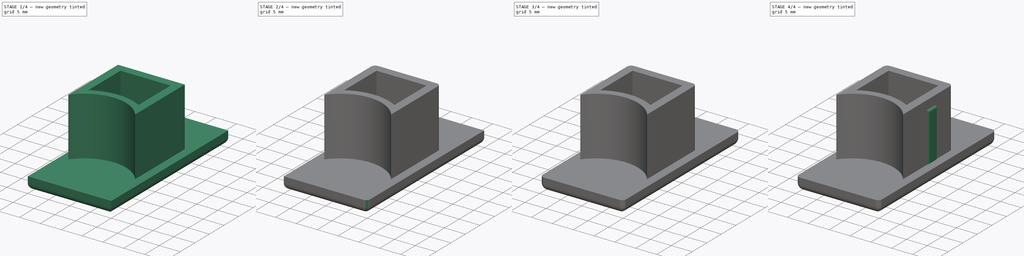
[diagram: build sequence overview — one tinted view per stage of 4, left to right]
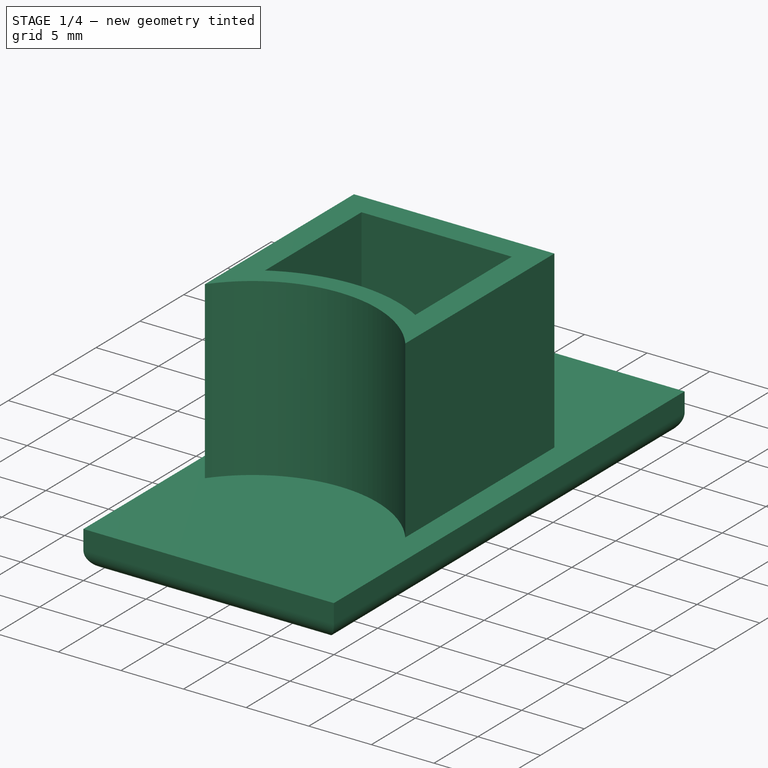
[diagram: stage 1 of 4 — iso view after this stage's code; geometry added in this stage tinted green]
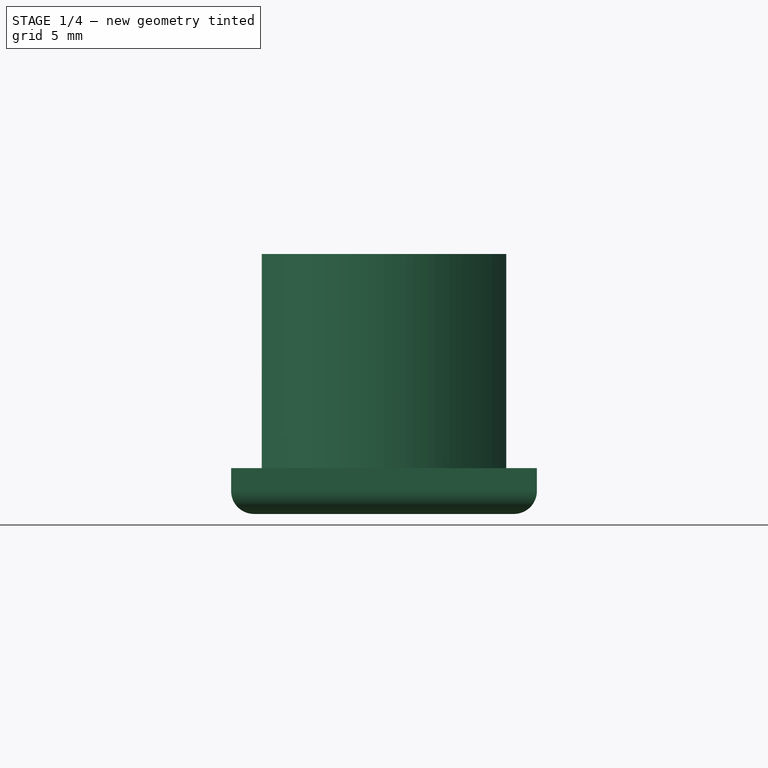
[diagram: stage 1 of 4 — front view after this stage's code; geometry added in this stage tinted green]
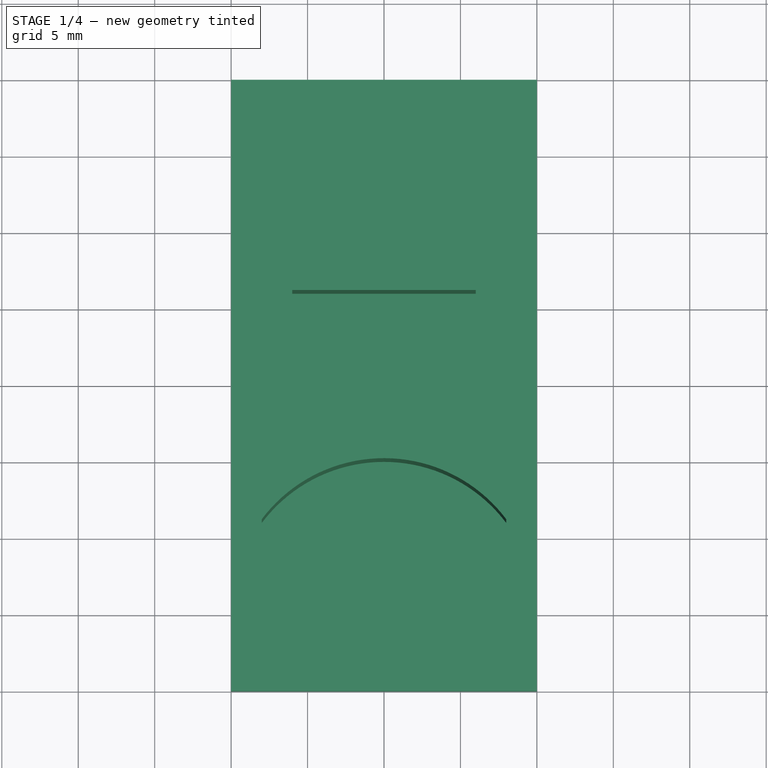
[diagram: stage 1 of 4 — top view after this stage's code; geometry added in this stage tinted green]
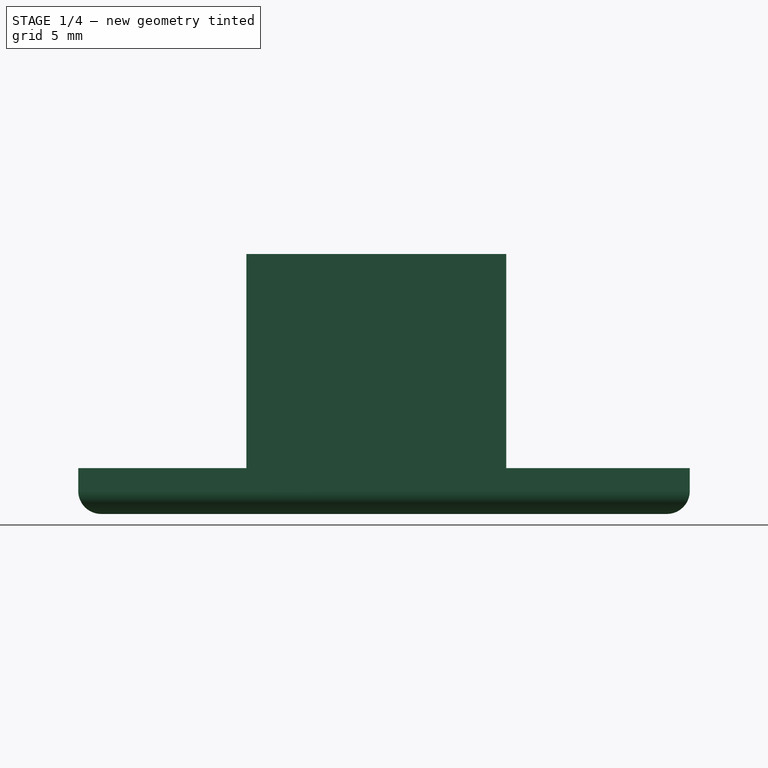
[diagram: stage 1 of 4 — right view after this stage's code; geometry added in this stage tinted green]
FCSTD DOCUMENT  (FreeCAD 0.19R24276 (Git))
Label: PiedChaise
License: Creative Commons Attribution-NonCommercial
LicenseURL: http://creativecommons.org/licenses/by-nc/4.0/
objects: Sketcher::SketchObject×8, PartDesign::Fillet×8, PartDesign::Pad×5, PartDesign::Pocket×1, PartDesign::Body×1
note: 37 computed .brp shape members not serialized (recipe doc carries the construction recipe); baked Part::Feature solids carry a one-line shape summary decoded from their .brp

FEATURE [Sketcher::SketchObject] Sketch
  FullyConstrained = true
  MapMode = 5
  Support = -> [XY_Plane]
  sketch-geometry (4):
    g0: LineSegment StartX=0 StartY=0 StartZ=0 EndX=20 EndY=0 EndZ=0
    g1: LineSegment StartX=20 StartY=0 StartZ=0 EndX=20 EndY=40 EndZ=0
    g2: LineSegment StartX=20 StartY=40 StartZ=0 EndX=0 EndY=40 EndZ=0
    g3: LineSegment StartX=0 StartY=40 StartZ=0 EndX=0 EndY=0 EndZ=0
  constraints (11):
    c: Coincident(g0,g1)
    c: Coincident(g1,g2)
    c: Coincident(g2,g3)
    c: Coincident(g3,g0)
    c: Horizontal(g0)
    c: Horizontal(g2)
    c: Vertical(g1)
    c: Vertical(g3)
    c: Coincident(g0,g-1)
    c: Distance(g1) = 40
    c: Distance(g2) = 20
FEATURE [PartDesign::Pad] Pad
  Direction = (1,1,1)
  Length = 3
  Length2 = 100
  Profile = -> Sketch
  Type = 0
FEATURE [Sketcher::SketchObject] Sketch001
  ExternalGeometry = -> [Pad]
  FullyConstrained = true
  MapMode = 5
  Placement = pos=(0,0,3) rot=(0,0,1;0rad)
  Support = -> [Pad]
  sketch-geometry (6):
    g0: LineSegment StartX=2 StartY=28 StartZ=0 EndX=18 EndY=28 EndZ=0
    g1: LineSegment StartX=18 StartY=28 StartZ=0 EndX=18 EndY=11 EndZ=0
    g2: LineSegment StartX=18 StartY=11 StartZ=0 EndX=2 EndY=11 EndZ=0
    g3: LineSegment StartX=2 StartY=11 StartZ=0 EndX=2 EndY=28 EndZ=0
    g4: LineSegment StartX=10 StartY=15 StartZ=0 EndX=10 EndY=11 EndZ=0
    g5: ArcOfCircle CenterX=10 CenterY=5 CenterZ=0 NormalX=0 NormalY=0 NormalZ=1 AngleXU=0 Radius=10 StartAngle=0.643501 EndAngle=2.49809
  constraints (18):
    c: Coincident(g0,g1)
    c: Coincident(g1,g2)
    c: Coincident(g2,g3)
    c: Coincident(g3,g0)
    c: Horizontal(g0)
    c: Horizontal(g2)
    c: Vertical(g1)
    c: Vertical(g3)
    c: Distance(g0) = 16
    c: Distance(g1) = 17
    c: Distance(g0,g-3) = 12
    c: Distance(g0,g-4) = 2
    c: Vertical(g4)
    c: Symmetric(g3,g1,g4)
    c: Distance(g4) = 4
    c: Coincident(g5,g3)
    c: Coincident(g5,g1)
    c: PointOnObject(g4,g5)
FEATURE [PartDesign::Pad] Pad001
  BaseFeature = -> Pad
  Direction = (1,1,1)
  Length = 14
  Length2 = 100
  Profile = -> Sketch001
  Type = 0
FEATURE [Sketcher::SketchObject] Sketch002
  ExternalGeometry = -> [Pad001]
  FullyConstrained = false
  MapMode = 5
  Placement = pos=(0,0,17) rot=(0,0,1;0rad)
  Support = -> [Pad001]
  sketch-geometry (6):
    g0: LineSegment StartX=4 StartY=26 StartZ=0 EndX=16 EndY=26 EndZ=0
    g1: LineSegment StartX=16 StartY=26 StartZ=0 EndX=16 EndY=15 EndZ=0
    g2: LineSegment StartX=4 StartY=15 StartZ=0 EndX=4 EndY=26 EndZ=0
    g3: LineSegment StartX=4 StartY=15 StartZ=0 EndX=4 EndY=13 EndZ=0
    g4: LineSegment StartX=16 StartY=15 StartZ=0 EndX=16 EndY=13 EndZ=0
    g5: ArcOfCircle CenterX=10 CenterY=4.62504 CenterZ=0 NormalX=0 NormalY=0 NormalZ=1 AngleXU=0 Radius=11.985 StartAngle=1.04647 EndAngle=2.09512
  constraints (18):
    c: Coincident(g0,g1)
    c: Coincident(g2,g0)
    c: Horizontal(g0)
    c: Vertical(g1)
    c: Vertical(g2)
    c: Distance(g0) = 12
    c: Distance(g0,g-3) = 2
    c: Distance(g0,g-6) = 2
    c: Coincident(g3,g2)
    c: PointOnObject(g3,g-5)
    c: Vertical(g3)
    c: Distance(g3) = 2
    c: Coincident(g4,g1)
    c: PointOnObject(g4,g-5)
    c: Vertical(g4)
    c: Distance(g4) = 2
    c: Coincident(g5,g2)
    c: Coincident(g5,g1)
FEATURE [PartDesign::Pocket] Pocket
  BaseFeature = -> Pad001
  Length = 14
  Length2 = 100
  Profile = -> Sketch002
  Type = 0
FEATURE [PartDesign::Fillet] Fillet
  Base = -> Pocket [Face4]
  BaseFeature = -> Pocket
  Radius = 1.5
  SupportTransform = false
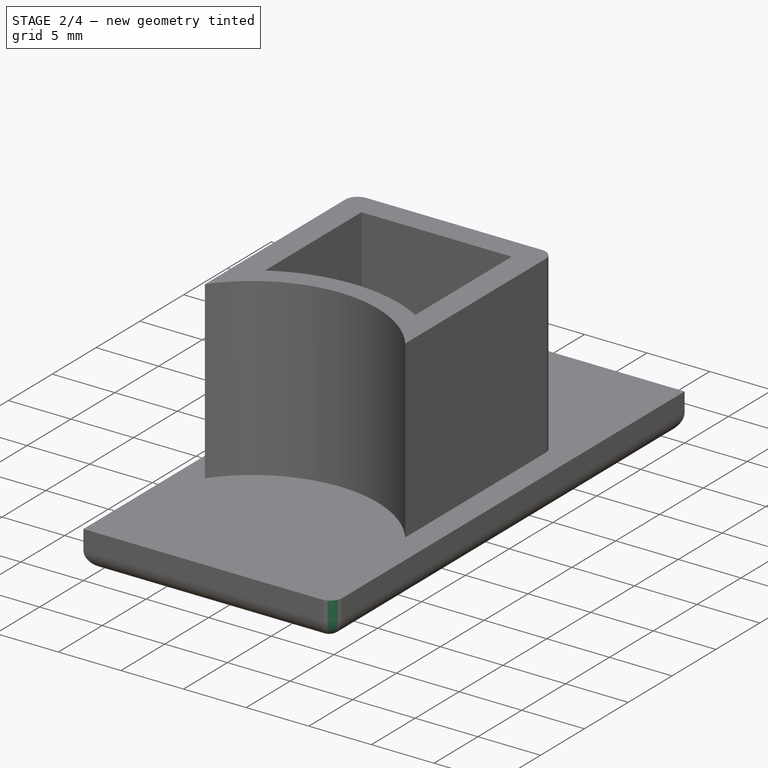
[diagram: stage 2 of 4 — iso view after this stage's code; geometry added in this stage tinted green]
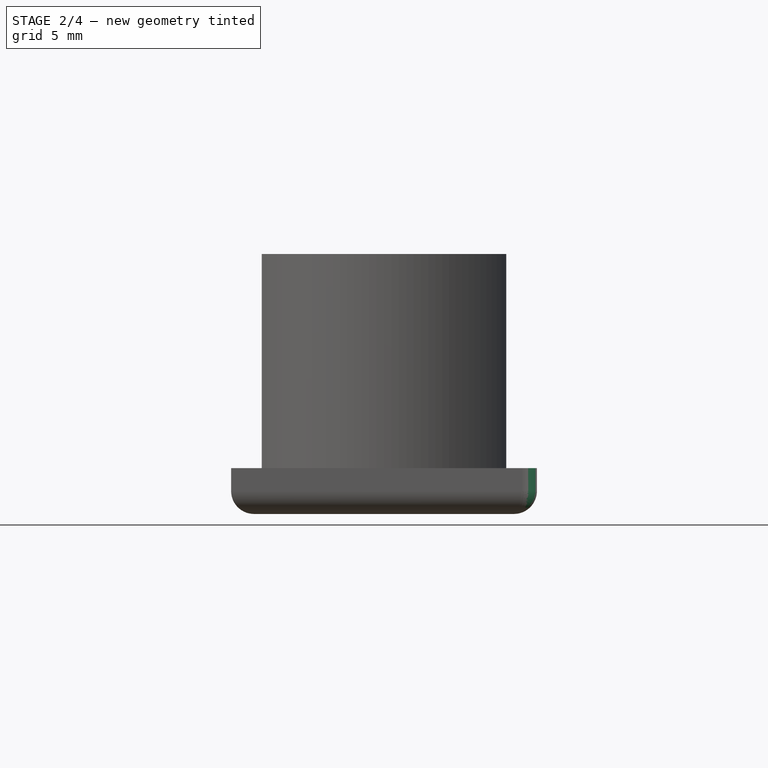
[diagram: stage 2 of 4 — front view after this stage's code; geometry added in this stage tinted green]
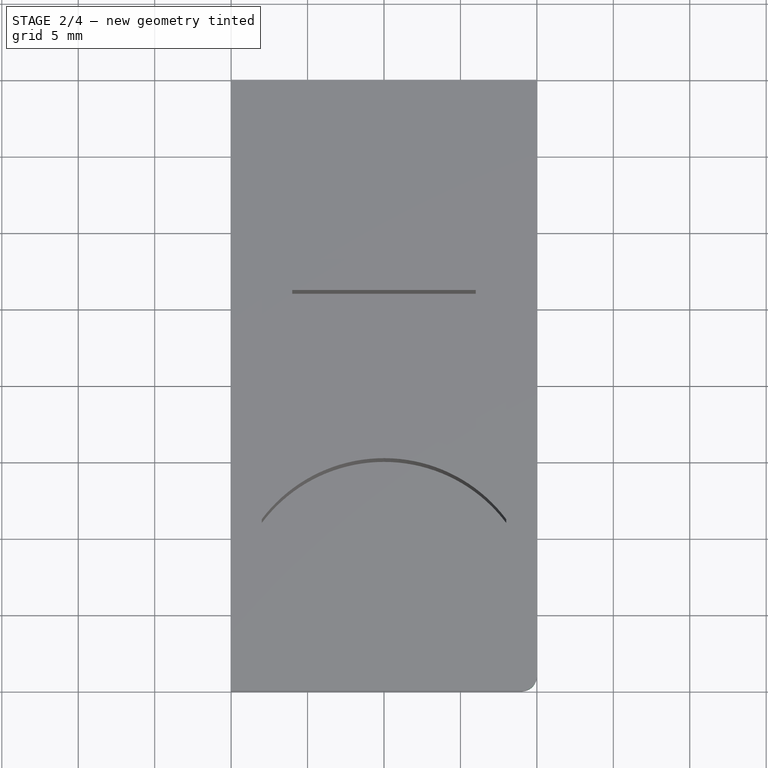
[diagram: stage 2 of 4 — top view after this stage's code; geometry added in this stage tinted green]
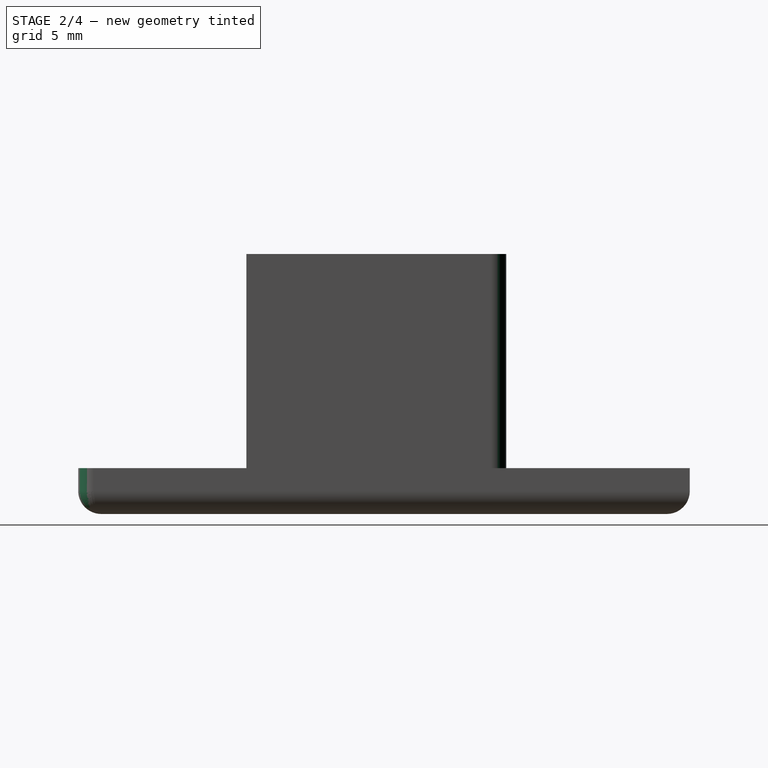
[diagram: stage 2 of 4 — right view after this stage's code; geometry added in this stage tinted green]
FEATURE [PartDesign::Fillet] Fillet001
  Base = -> Fillet [Edge30]
  BaseFeature = -> Fillet
  Radius = 1
  SupportTransform = false
FEATURE [PartDesign::Fillet] Fillet002
  Base = -> Fillet001 [Edge17]
  BaseFeature = -> Fillet001
  Radius = 1
  SupportTransform = false
FEATURE [PartDesign::Fillet] Fillet003
  Base = -> Fillet002 [Edge25]
  BaseFeature = -> Fillet002
  Radius = 1
  SupportTransform = false
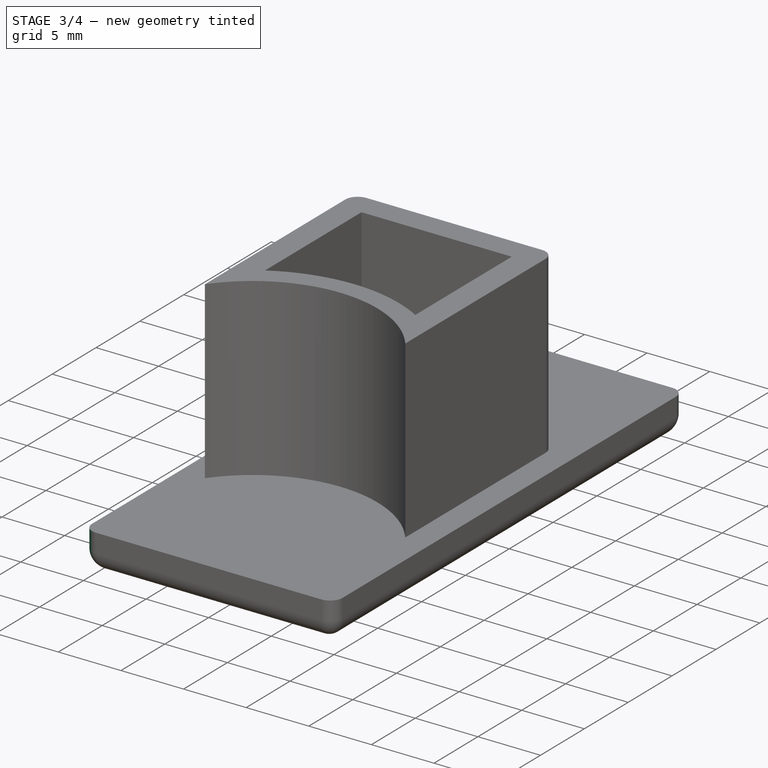
[diagram: stage 3 of 4 — iso view after this stage's code; geometry added in this stage tinted green]
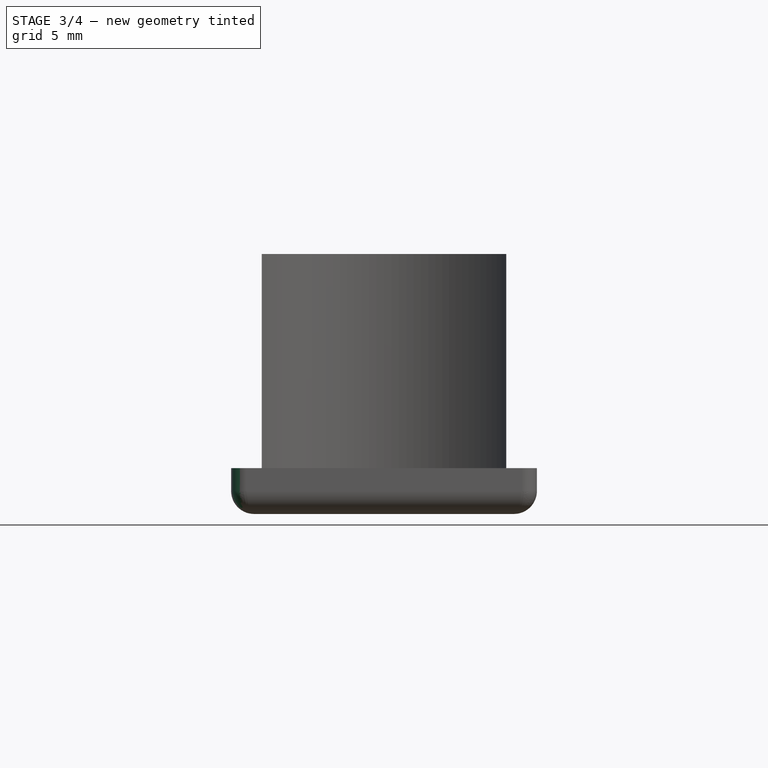
[diagram: stage 3 of 4 — front view after this stage's code; geometry added in this stage tinted green]
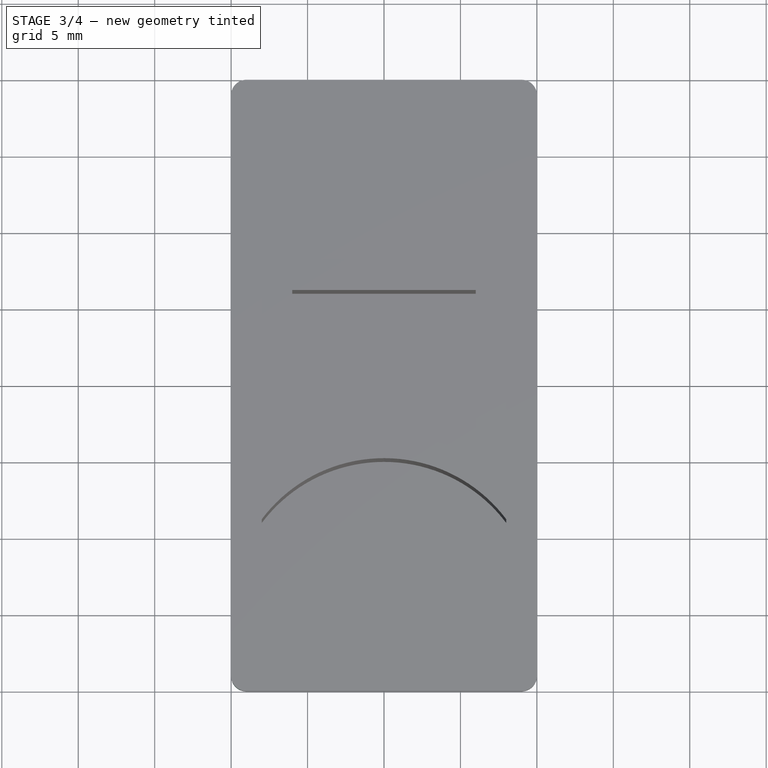
[diagram: stage 3 of 4 — top view after this stage's code; geometry added in this stage tinted green]
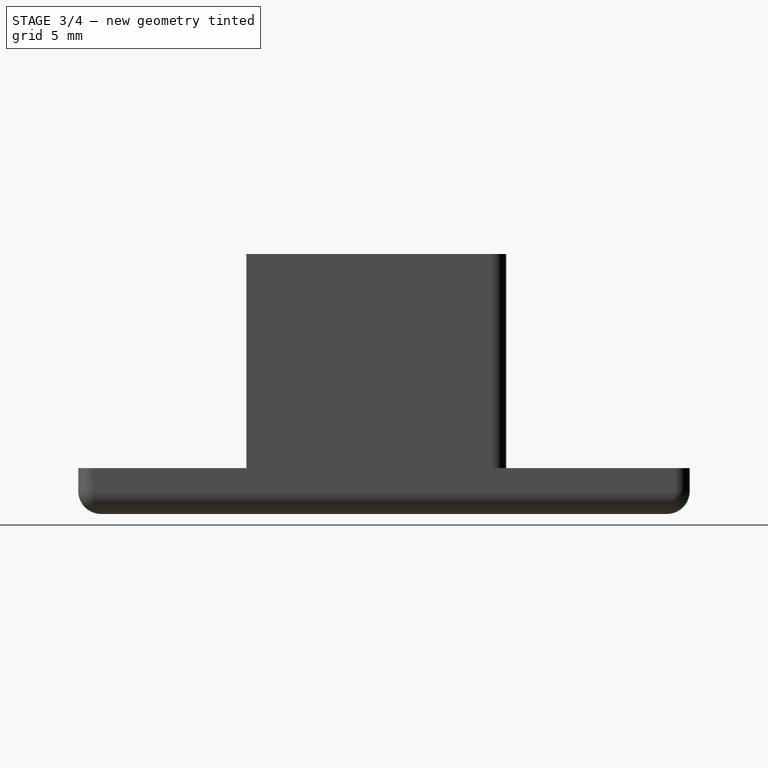
[diagram: stage 3 of 4 — right view after this stage's code; geometry added in this stage tinted green]
FEATURE [PartDesign::Fillet] Fillet004
  Base = -> Fillet003 [Edge20]
  BaseFeature = -> Fillet003
  Radius = 1
  SupportTransform = false
FEATURE [PartDesign::Fillet] Fillet005
  Base = -> Fillet004 [Edge21]
  BaseFeature = -> Fillet004
  Radius = 1
  SupportTransform = false
FEATURE [PartDesign::Fillet] Fillet006
  Base = -> Fillet005 [Edge22]
  BaseFeature = -> Fillet005
  Radius = 1
  SupportTransform = false
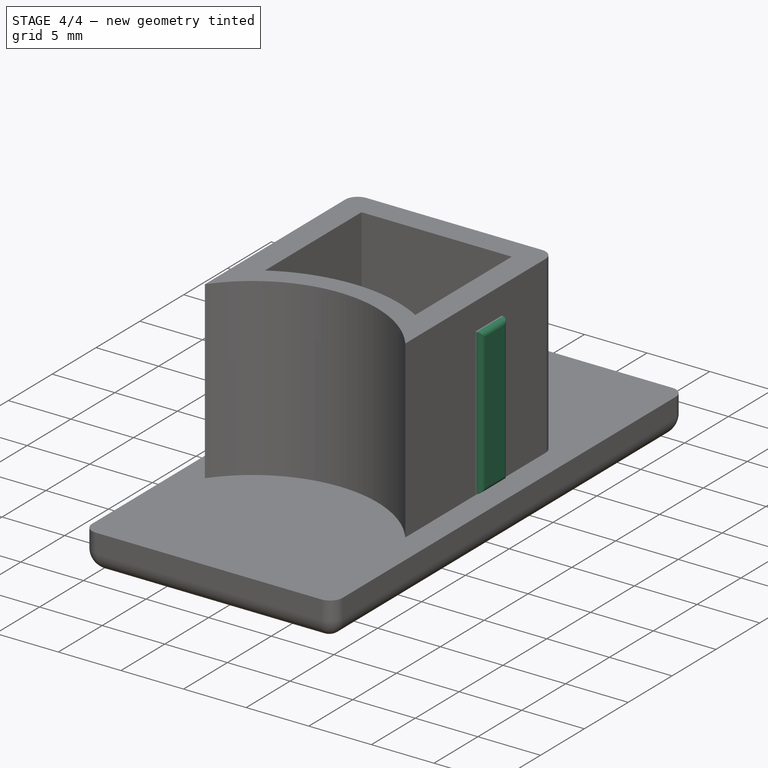
[diagram: stage 4 of 4 — iso view after this stage's code; geometry added in this stage tinted green]
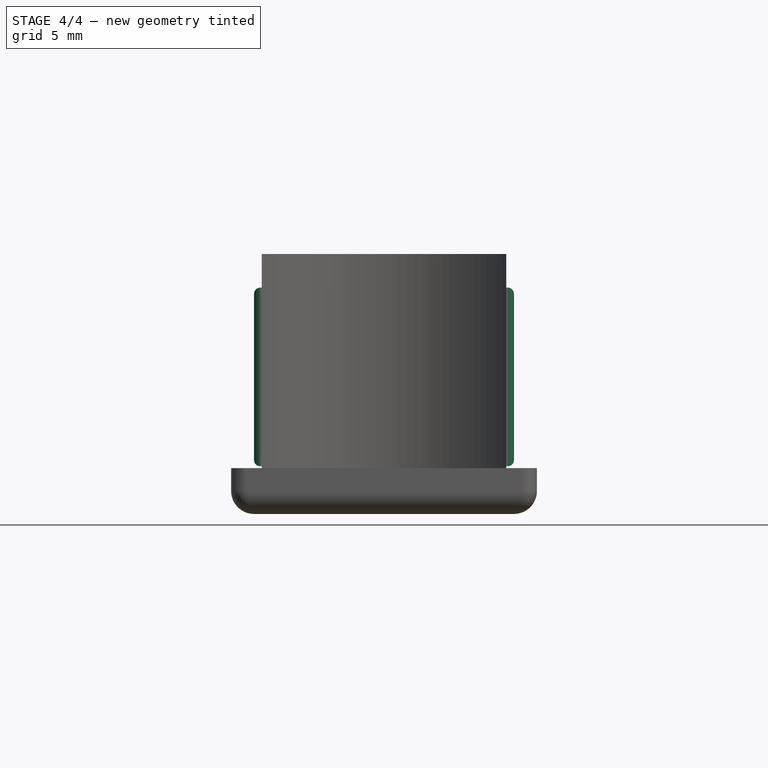
[diagram: stage 4 of 4 — front view after this stage's code; geometry added in this stage tinted green]
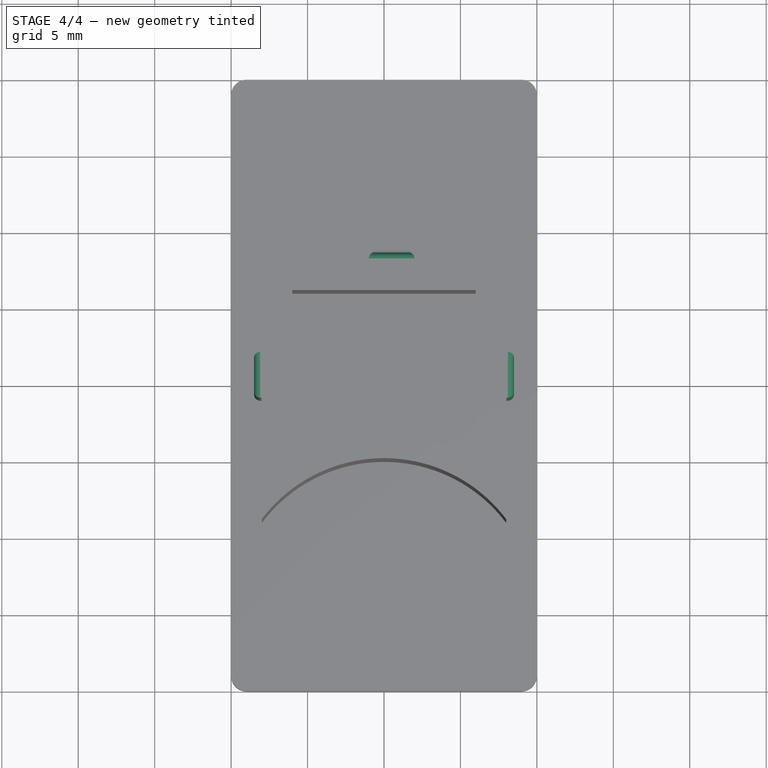
[diagram: stage 4 of 4 — top view after this stage's code; geometry added in this stage tinted green]
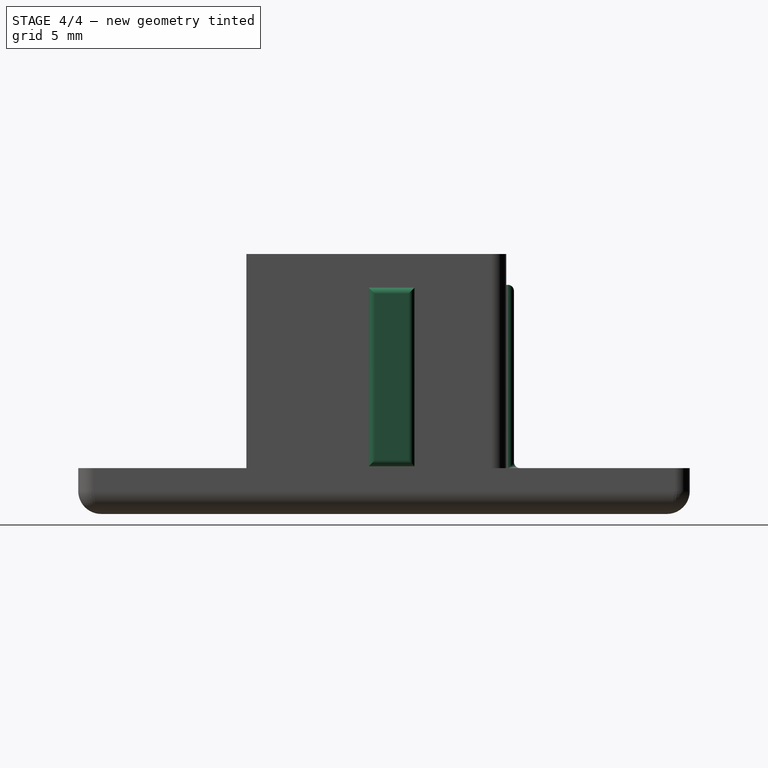
[diagram: stage 4 of 4 — right view after this stage's code; geometry added in this stage tinted green]
FEATURE [Sketcher::SketchObject] Sketch003
  ExternalGeometry = -> [Fillet006]
  FullyConstrained = false
  MapMode = 5
  Placement = pos=(18,0,0) rot=(0.57735,0.57735,0.57735;2.0944rad)
  Support = -> [Fillet006]
  sketch-geometry (4):
    g0: LineSegment StartX=19 StartY=14.805 StartZ=0 EndX=22 EndY=14.805 EndZ=0
    g1: LineSegment StartX=22 StartY=14.805 StartZ=0 EndX=22 EndY=3.12083 EndZ=0
    g2: LineSegment StartX=22 StartY=3.12083 StartZ=0 EndX=19 EndY=3.12083 EndZ=0
    g3: LineSegment StartX=19 StartY=3.12083 StartZ=0 EndX=19 EndY=14.805 EndZ=0
  constraints (10):
    c: Coincident(g0,g1)
    c: Coincident(g1,g2)
    c: Coincident(g2,g3)
    c: Coincident(g3,g0)
    c: Horizontal(g0)
    c: Horizontal(g2)
    c: Vertical(g1)
    c: Vertical(g3)
    c: Distance(g0,g-3) = 8
    c: Distance(g0) = 3
FEATURE [Sketcher::SketchObject] Sketch004
  FullyConstrained = true
  MapMode = 5
  Placement = pos=(2,0,0) rot=(0.57735,-0.57735,-0.57735;2.0944rad)
  Support = -> [Fillet006]
FEATURE [PartDesign::Pad] Pad002
  BaseFeature = -> Fillet006
  Direction = (1,1,1)
  Length = 0.5
  Length2 = 100
  Profile = -> Sketch003
  Type = 0
FEATURE [Sketcher::SketchObject] Sketch005
  ExternalGeometry = -> [Pad002]
  FullyConstrained = true
  MapMode = 5
  Placement = pos=(2,0,0) rot=(0.57735,-0.57735,-0.57735;2.0944rad)
  Support = -> [Pad002]
  sketch-geometry (4):
    g0: LineSegment StartX=-22 StartY=14.805 StartZ=0 EndX=-19 EndY=14.805 EndZ=0
    g1: LineSegment StartX=-19 StartY=3.12083 StartZ=0 EndX=-22 EndY=3.12083 EndZ=0
    g2: LineSegment StartX=-22 StartY=14.805 StartZ=0 EndX=-22 EndY=3.12083 EndZ=0
    g3: LineSegment StartX=-19 StartY=3.12083 StartZ=0 EndX=-19 EndY=14.805 EndZ=0
  constraints (8):
    c: Coincident(g0,g-5)
    c: Coincident(g0,g-5)
    c: Coincident(g1,g-4)
    c: Coincident(g1,g-3)
    c: Coincident(g2,g0)
    c: Coincident(g2,g1)
    c: Coincident(g3,g1)
    c: Coincident(g3,g0)
FEATURE [PartDesign::Pad] Pad003
  BaseFeature = -> Pad002
  Direction = (1,1,1)
  Length = 0.5
  Length2 = 100
  Profile = -> Sketch005
  Type = 0
FEATURE [Sketcher::SketchObject] Sketch006
  FullyConstrained = true
  MapMode = 5
  Placement = pos=(0,28,0) rot=(0,0.707107,0.707107;3.14159rad)
  Support = -> [Pad003]
FEATURE [Sketcher::SketchObject] Sketch007
  ExternalGeometry = -> [Pad003,Sketch003]
  FullyConstrained = false
  MapMode = 5
  Placement = pos=(0,28,0) rot=(0,0.707107,0.707107;3.14159rad)
  Support = -> [Pad003]
  sketch-geometry (4):
    g0: LineSegment StartX=-12 StartY=14.9847 StartZ=0 EndX=-9 EndY=14.9847 EndZ=0
    g1: LineSegment StartX=-9 StartY=14.9847 StartZ=0 EndX=-9 EndY=3 EndZ=0
    g2: LineSegment StartX=-9 StartY=3 StartZ=0 EndX=-12 EndY=3 EndZ=0
    g3: LineSegment StartX=-12 StartY=3 StartZ=0 EndX=-12 EndY=14.9847 EndZ=0
  constraints (11):
    c: Coincident(g0,g1)
    c: Coincident(g1,g2)
    c: Coincident(g2,g3)
    c: Coincident(g3,g0)
    c: Horizontal(g0)
    c: Horizontal(g2)
    c: Vertical(g1)
    c: Vertical(g3)
    c: PointOnObject(g2,g-3)
    c: Distance(g0,g-4) = 6
    c: Distance(g0) = 3
FEATURE [PartDesign::Pad] Pad004
  BaseFeature = -> Pad003
  Direction = (1,1,1)
  Length = 0.5
  Length2 = 100
  Profile = -> Sketch007
  Type = 0
FEATURE [PartDesign::Fillet] Fillet007
  Base = -> Pad004 [Face43,Face17,Face42]
  BaseFeature = -> Pad004
  Radius = 0.4
  SupportTransform = false
FEATURE [PartDesign::Body] Body
  Group = -> [Sketch,Pad,Sketch001,Pad001,Sketch002,Pocket,Fillet,Fillet001,Fillet002,Fillet003,Fillet004,Fillet005,Fillet006,Sketch003,Sketch004,Pad002,Sketch005,Pad003,Sketch006,Sketch007,Pad004,Fillet007]
  Origin = -> Origin
  Tip = -> Fillet007
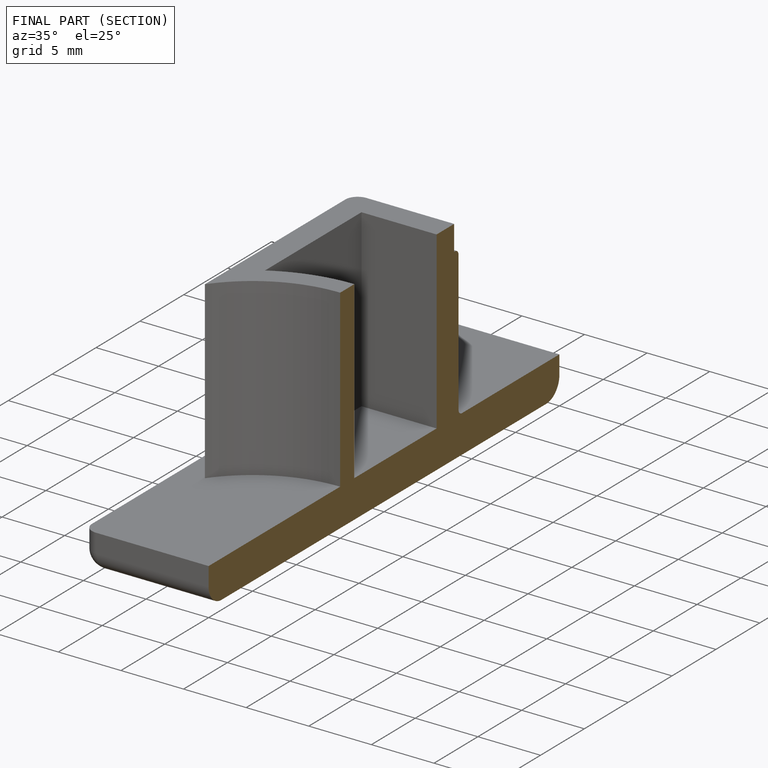
[diagram: finished part — half-section view (interior)]
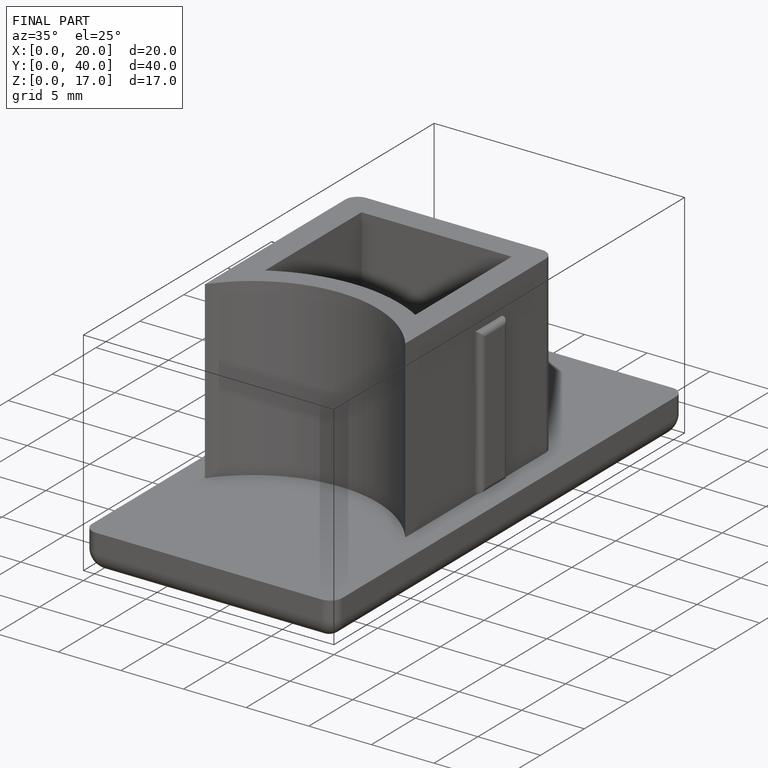
[diagram: finished part — iso view with bounding-box wireframe]
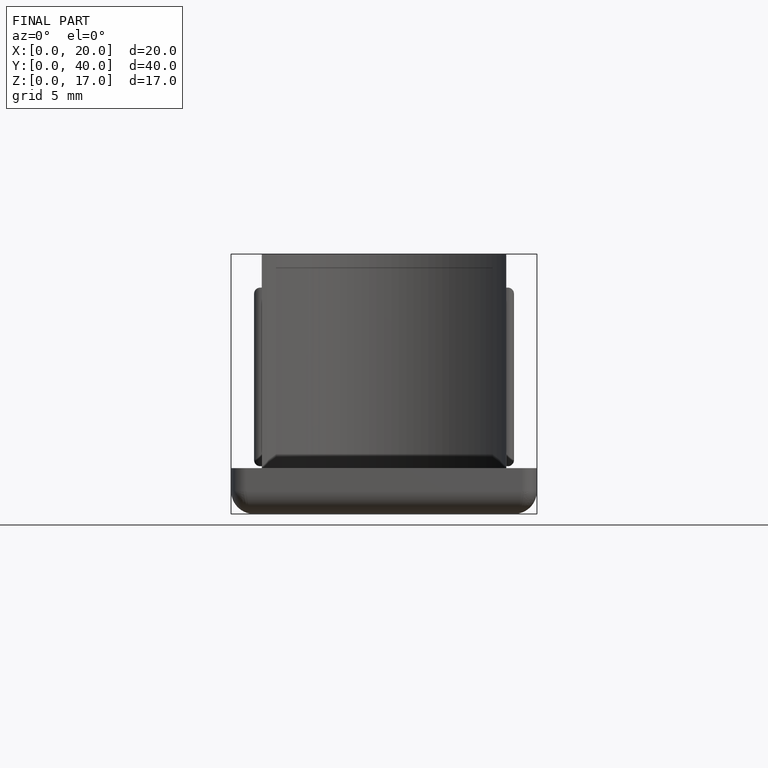
[diagram: finished part — front view with bounding-box wireframe]
